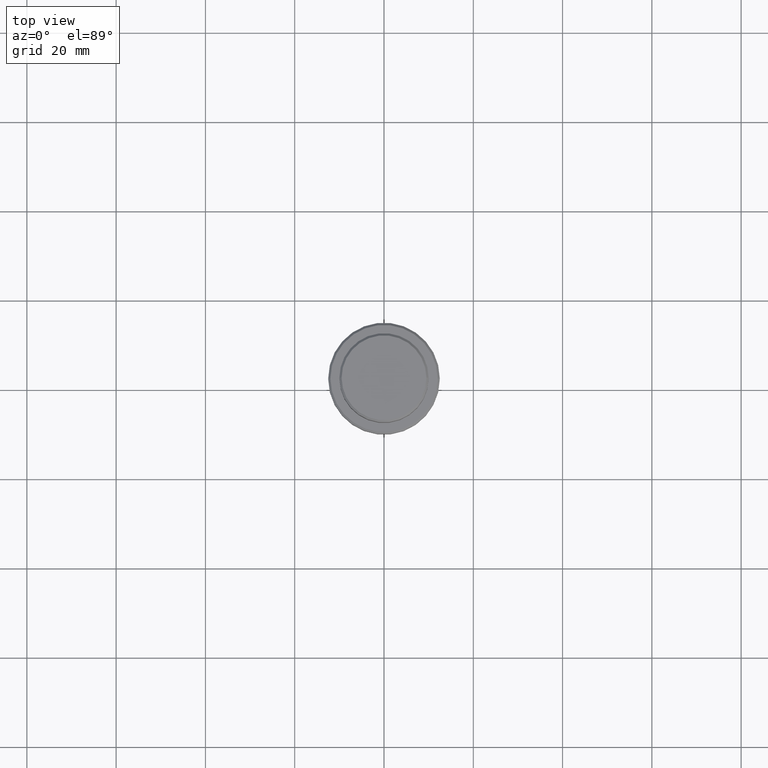
[diagram: clean part render]
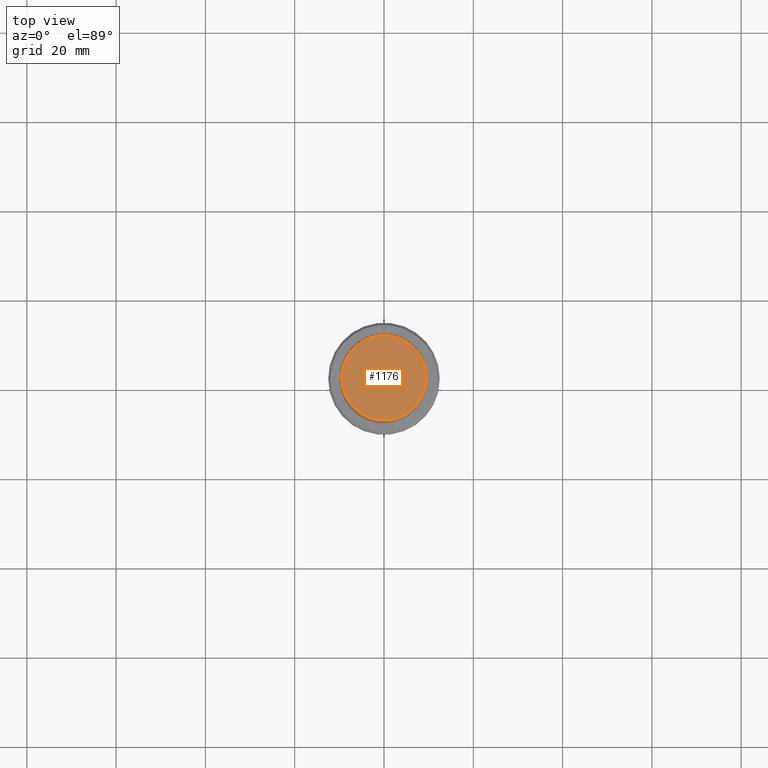
[diagram: same view with one face highlighted and labeled with its STEP entity id]
A machine part, top view. The second image highlights one B-rep face of the part: STEP entity #1176.
In plain terms, the highlighted planar face has unit normal (0, -0, 1).
Its self-contained STEP definition (entity closure, byte-faithful):
#69 = CARTESIAN_POINT ( 'NONE',  ( 0.000000000000000000, 0.000000000000000000, 0.000000000000000000 ) ) ;
#82 = CIRCLE ( 'NONE', #947, 9.500000000000023093 ) ;
#139 = EDGE_CURVE ( 'NONE', #1346, #697, #566, .T. ) ;
#161 = DIRECTION ( 'NONE',  ( 1.000000000000000000, 0.000000000000000000, 0.000000000000000000 ) ) ;
#170 = AXIS2_PLACEMENT_3D ( 'NONE', #945, #1154, #161 ) ;
#211 = DIRECTION ( 'NONE',  ( 1.000000000000000000, 0.000000000000000000, 0.000000000000000000 ) ) ;
#245 = ORIENTED_EDGE ( 'NONE', *, *, #139, .T. ) ;
#330 = FACE_OUTER_BOUND ( 'NONE', #808, .T. ) ;
#345 = AXIS2_PLACEMENT_3D ( 'NONE', #69, #1203, #211 ) ;
#423 = CARTESIAN_POINT ( 'NONE',  ( 9.500000000000023093, 1.194030629168670653E-15, 0.000000000000000000 ) ) ;
#527 = ORIENTED_EDGE ( 'NONE', *, *, #1310, .T. ) ;
#566 = CIRCLE ( 'NONE', #170, 9.500000000000023093 ) ;
#682 = DIRECTION ( 'NONE',  ( -0.000000000000000000, -0.000000000000000000, 1.000000000000000000 ) ) ;
#697 = VERTEX_POINT ( 'NONE', #423 ) ;
#773 = PLANE ( 'NONE',  #345 ) ;
#808 = EDGE_LOOP ( 'NONE', ( #245, #527 ) ) ;
#892 = CARTESIAN_POINT ( 'NONE',  ( 0.000000000000000000, 0.000000000000000000, 0.000000000000000000 ) ) ;
#908 = DIRECTION ( 'NONE',  ( 1.000000000000000000, 0.000000000000000000, 0.000000000000000000 ) ) ;
#913 = CARTESIAN_POINT ( 'NONE',  ( -9.500000000000023093, 0.000000000000000000, 0.000000000000000000 ) ) ;
#945 = CARTESIAN_POINT ( 'NONE',  ( 0.000000000000000000, 0.000000000000000000, 0.000000000000000000 ) ) ;
#947 = AXIS2_PLACEMENT_3D ( 'NONE', #892, #682, #908 ) ;
#1154 = DIRECTION ( 'NONE',  ( -0.000000000000000000, -0.000000000000000000, 1.000000000000000000 ) ) ;
#1176 = ADVANCED_FACE ( 'NONE', ( #330 ), #773, .T. ) ;
#1203 = DIRECTION ( 'NONE',  ( 0.000000000000000000, -0.000000000000000000, 1.000000000000000000 ) ) ;
#1310 = EDGE_CURVE ( 'NONE', #697, #1346, #82, .T. ) ;
#1346 = VERTEX_POINT ( 'NONE', #913 ) ;